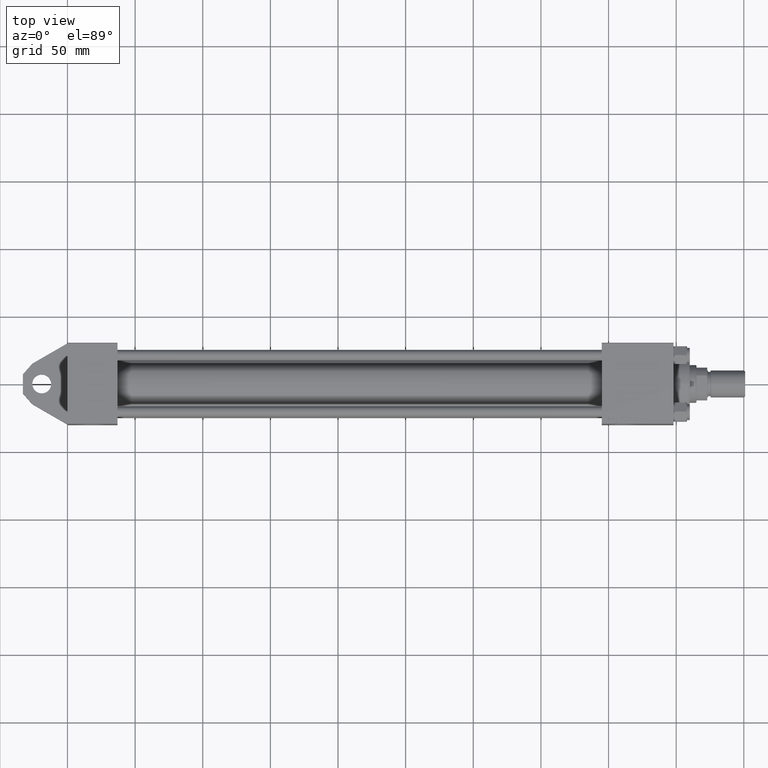
[diagram: clean part render]
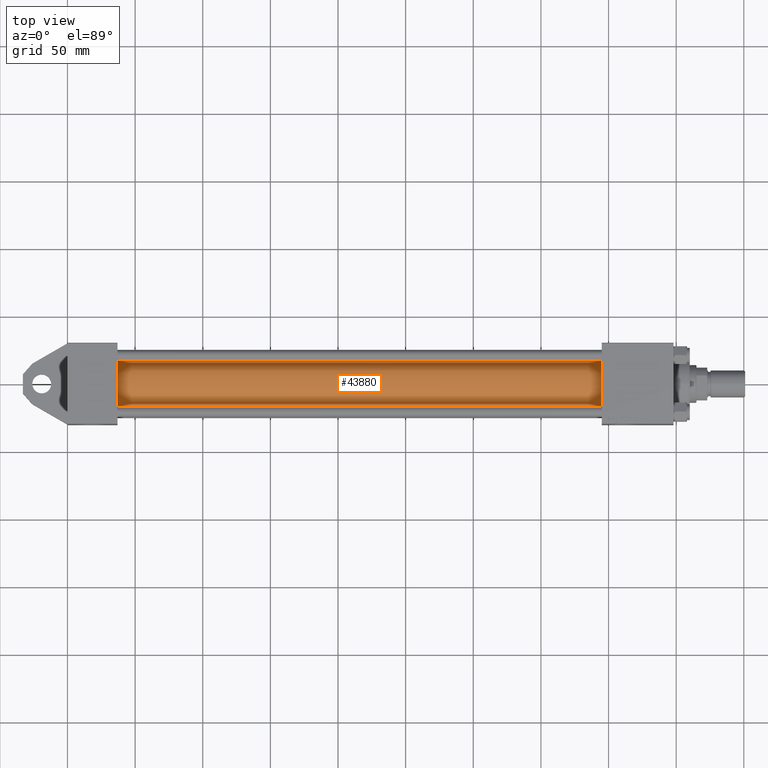
[diagram: same view with one face highlighted and labeled with its STEP entity id]
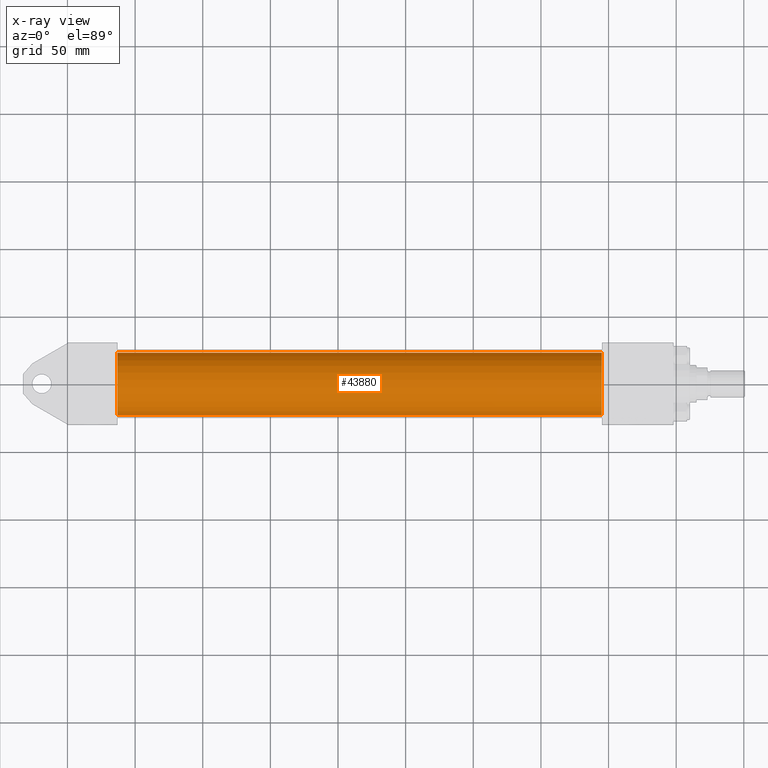
[diagram: x-ray of the same camera — body ghosted, the highlighted face saturated]
A machine part, top view. The second image highlights one B-rep face of the part: STEP entity #43880.
The next image is the same camera in x-ray: the body ghosted, the highlighted face saturated — about 0% of this face is hidden behind the body in this view.
In plain terms, the highlighted cylindrical surface (edge-blend (fillet) strip) has radius 23 mm, axis along (-1, -0, 0).
Its self-contained STEP definition (entity closure, byte-faithful):
#647 = ORIENTED_EDGE ( 'NONE', *, *, #26390, .T. ) ;
#1175 = CIRCLE ( 'NONE', #27470, 23.00000000000000000 ) ;
#1316 = CIRCLE ( 'NONE', #33635, 23.00000000000000000 ) ;
#1727 = CARTESIAN_POINT ( 'NONE',  ( 36.99999999999997868, 2.146024240737012665E-16, -23.00000000000000000 ) ) ;
#3809 = DIRECTION ( 'NONE',  ( 1.000000000000000000, 0.000000000000000000, 0.000000000000000000 ) ) ;
#5211 = DIRECTION ( 'NONE',  ( 0.000000000000000000, 0.000000000000000000, 1.000000000000000000 ) ) ;
#6413 = CARTESIAN_POINT ( 'NONE',  ( 394.9999999999999432, 2.146024240737012665E-16, -23.00000000000000000 ) ) ;
#8975 = DIRECTION ( 'NONE',  ( -1.000000000000000000, -0.000000000000000000, -0.000000000000000000 ) ) ;
#15099 = VERTEX_POINT ( 'NONE', #31398 ) ;
#15552 = CARTESIAN_POINT ( 'NONE',  ( 394.9999999999999432, -2.602085213965210642E-15, 0.000000000000000000 ) ) ;
#15789 = FACE_OUTER_BOUND ( 'NONE', #24531, .T. ) ;
#16019 = CYLINDRICAL_SURFACE ( 'NONE', #39271, 23.00000000000000000 ) ;
#21446 = VERTEX_POINT ( 'NONE', #36913 ) ;
#21742 = VERTEX_POINT ( 'NONE', #1727 ) ;
#21881 = EDGE_CURVE ( 'NONE', #21446, #15099, #39570, .T. ) ;
#22023 = DIRECTION ( 'NONE',  ( 1.000000000000000000, -0.000000000000000000, 0.000000000000000000 ) ) ;
#24285 = DIRECTION ( 'NONE',  ( -1.000000000000000000, -0.000000000000000000, -0.000000000000000000 ) ) ;
#24531 = EDGE_LOOP ( 'NONE', ( #36052, #44749, #647, #44863 ) ) ;
#25318 = DIRECTION ( 'NONE',  ( 0.000000000000000000, 0.000000000000000000, 1.000000000000000000 ) ) ;
#26390 = EDGE_CURVE ( 'NONE', #21742, #15099, #1175, .T. ) ;
#26994 = VERTEX_POINT ( 'NONE', #34915 ) ;
#27470 = AXIS2_PLACEMENT_3D ( 'NONE', #29089, #22023, #25318 ) ;
#29089 = CARTESIAN_POINT ( 'NONE',  ( 36.99999999999997868, -2.602085213965210642E-15, 0.000000000000000000 ) ) ;
#29489 = VECTOR ( 'NONE', #24285, 1000.000000000000000 ) ;
#31398 = CARTESIAN_POINT ( 'NONE',  ( 36.99999999999997868, -2.602085213965210642E-15, 23.00000000000000000 ) ) ;
#32734 = DIRECTION ( 'NONE',  ( 0.000000000000000000, 0.000000000000000000, -1.000000000000000000 ) ) ;
#33635 = AXIS2_PLACEMENT_3D ( 'NONE', #43095, #3809, #32734 ) ;
#34915 = CARTESIAN_POINT ( 'NONE',  ( 394.9999999999999432, 2.146024240737012665E-16, -23.00000000000000000 ) ) ;
#35343 = LINE ( 'NONE', #6413, #29489 ) ;
#35802 = DIRECTION ( 'NONE',  ( -1.000000000000000000, -0.000000000000000000, -0.000000000000000000 ) ) ;
#36052 = ORIENTED_EDGE ( 'NONE', *, *, #44569, .F. ) ;
#36913 = CARTESIAN_POINT ( 'NONE',  ( 394.9999999999999432, -2.602085213965210642E-15, 23.00000000000000000 ) ) ;
#39271 = AXIS2_PLACEMENT_3D ( 'NONE', #15552, #8975, #5211 ) ;
#39570 = LINE ( 'NONE', #42869, #43115 ) ;
#42869 = CARTESIAN_POINT ( 'NONE',  ( 394.9999999999999432, -2.602085213965210642E-15, 23.00000000000000000 ) ) ;
#43095 = CARTESIAN_POINT ( 'NONE',  ( 394.9999999999999432, -2.602085213965210642E-15, 0.000000000000000000 ) ) ;
#43115 = VECTOR ( 'NONE', #35802, 1000.000000000000000 ) ;
#43753 = EDGE_CURVE ( 'NONE', #26994, #21742, #35343, .T. ) ;
#43880 = ADVANCED_FACE ( 'NONE', ( #15789 ), #16019, .T. ) ;
#44569 = EDGE_CURVE ( 'NONE', #26994, #21446, #1316, .T. ) ;
#44749 = ORIENTED_EDGE ( 'NONE', *, *, #43753, .T. ) ;
#44863 = ORIENTED_EDGE ( 'NONE', *, *, #21881, .F. ) ;